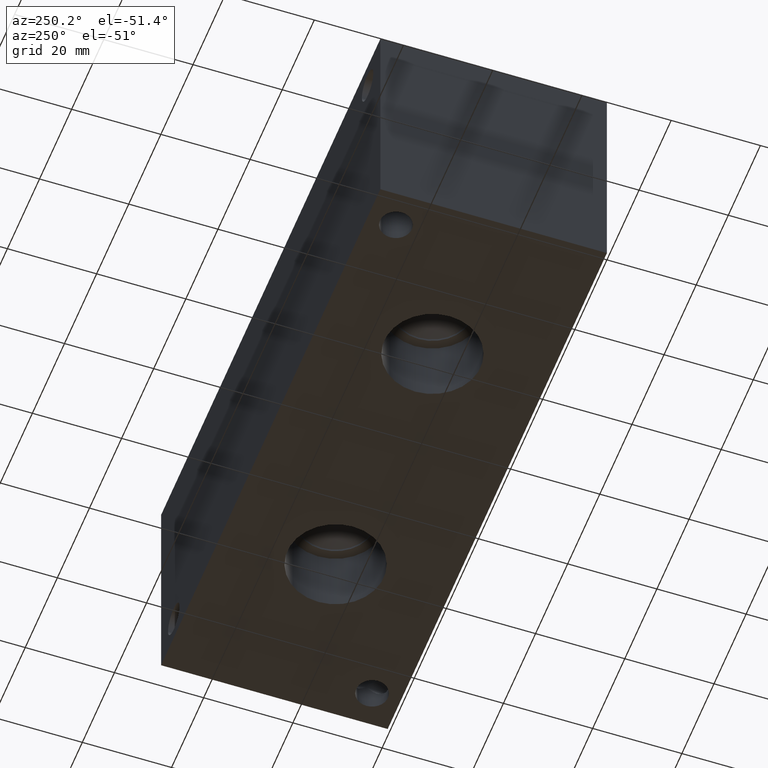
[diagram: clean part render]
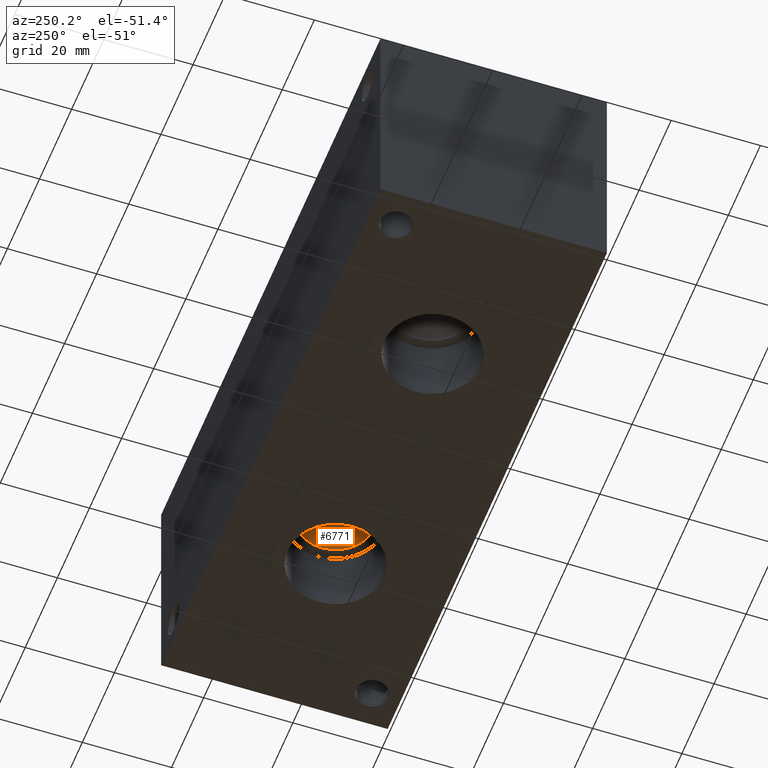
[diagram: same view with one face highlighted and labeled with its STEP entity id]
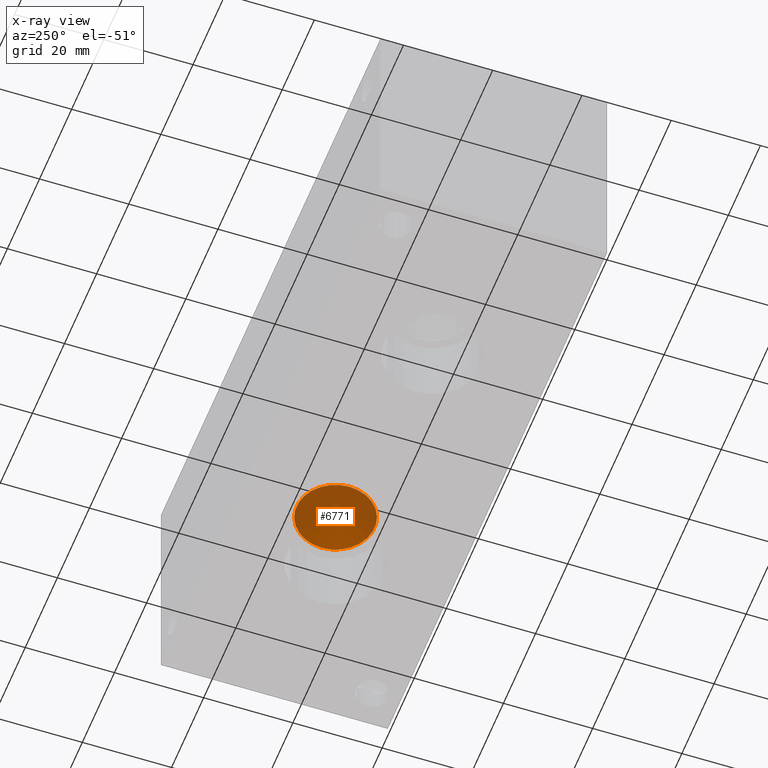
[diagram: x-ray of the same camera — body ghosted, the highlighted face saturated]
A machine part, auxiliary view. The second image highlights one B-rep face of the part: STEP entity #6771.
The next image is the same camera in x-ray: the body ghosted, the highlighted face saturated — about 71% of this face is hidden behind the body in this view.
In plain terms, the highlighted conical surface has half-angle 60 deg.
Its self-contained STEP definition (entity closure, byte-faithful):
#15=CONICAL_SURFACE('',#7049,4.3688,1.0471975511966);
#71=CIRCLE('',#7050,8.7376);
#72=CIRCLE('',#7051,8.7376);
#681=FACE_OUTER_BOUND('',#1055,.T.);
#1055=EDGE_LOOP('',(#5886,#5887,#5888,#5889));
#1741=LINE('',#11443,#2412);
#2412=VECTOR('',#8235,4.3688);
#3217=VERTEX_POINT('',#11439);
#3218=VERTEX_POINT('',#11440);
#3219=VERTEX_POINT('',#11442);
#4120=EDGE_CURVE('',#3217,#3218,#71,.T.);
#4121=EDGE_CURVE('',#3218,#3219,#1741,.T.);
#4122=EDGE_CURVE('',#3218,#3217,#72,.T.);
#5886=ORIENTED_EDGE('',*,*,#4120,.T.);
#5887=ORIENTED_EDGE('',*,*,#4121,.T.);
#5888=ORIENTED_EDGE('',*,*,#4121,.F.);
#5889=ORIENTED_EDGE('',*,*,#4122,.T.);
#6771=ADVANCED_FACE('',(#681),#15,.F.);
#7049=AXIS2_PLACEMENT_3D('',#11438,#8231,#8232);
#7050=AXIS2_PLACEMENT_3D('',#11441,#8233,#8234);
#7051=AXIS2_PLACEMENT_3D('',#11444,#8236,#8237);
#8231=DIRECTION('center_axis',(0.,0.,-1.));
#8232=DIRECTION('ref_axis',(1.,0.,0.));
#8233=DIRECTION('center_axis',(0.,0.,-1.));
#8234=DIRECTION('ref_axis',(1.,0.,0.));
#8235=DIRECTION('',(0.866025403784439,-1.06057523872491E-16,0.5));
#8236=DIRECTION('center_axis',(0.,0.,-1.));
#8237=DIRECTION('ref_axis',(1.,0.,0.));
#11438=CARTESIAN_POINT('Origin',(98.425,25.4,18.3937978560356));
#11439=CARTESIAN_POINT('',(107.1626,25.4,15.87147));
#11440=CARTESIAN_POINT('',(89.6874,25.4,15.87147));
#11441=CARTESIAN_POINT('Origin',(98.425,25.4,15.87147));
#11442=CARTESIAN_POINT('',(98.425,25.4,20.9161257120713));
#11443=CARTESIAN_POINT('',(94.0562,25.4,18.3937978560356));
#11444=CARTESIAN_POINT('Origin',(98.425,25.4,15.87147));